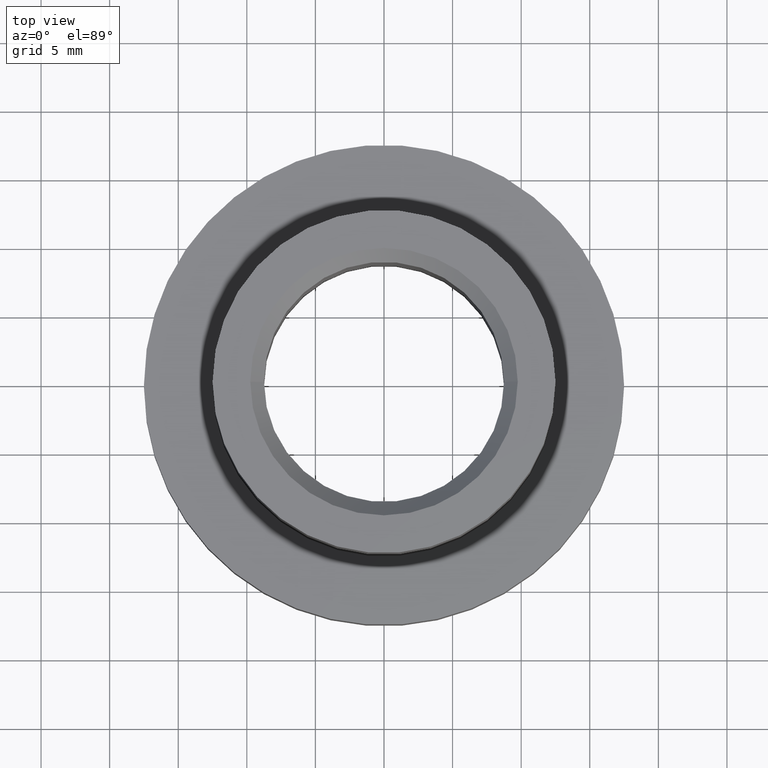
[diagram: clean part render]
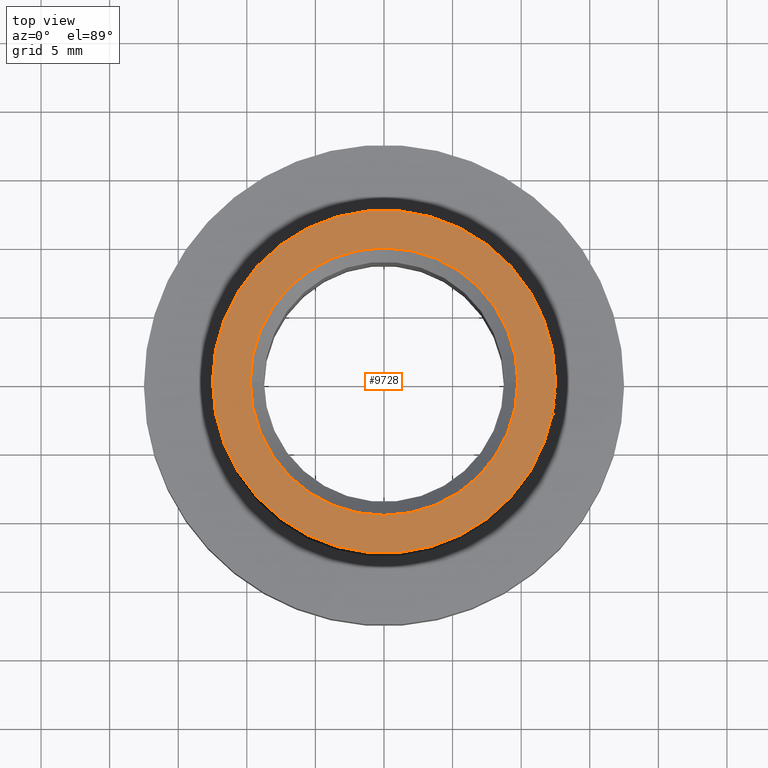
[diagram: same view with one face highlighted and labeled with its STEP entity id]
A machine part, top view. The second image highlights one B-rep face of the part: STEP entity #9728.
In plain terms, the highlighted planar face has unit normal (0, 0, -1).
Its self-contained STEP definition (entity closure, byte-faithful):
#746 = VERTEX_POINT ( 'NONE', #12157 ) ;
#756 = DIRECTION ( 'NONE',  ( 0.000000000000000000, 0.000000000000000000, -1.000000000000000000 ) ) ;
#775 = EDGE_CURVE ( 'NONE', #5687, #746, #13128, .T. ) ;
#846 = DIRECTION ( 'NONE',  ( -0.000000000000000000, -0.000000000000000000, 1.000000000000000000 ) ) ;
#925 = AXIS2_PLACEMENT_3D ( 'NONE', #8452, #1916, #5134 ) ;
#1014 = CIRCLE ( 'NONE', #925, 9.750000000000008882 ) ;
#1916 = DIRECTION ( 'NONE',  ( 0.000000000000000000, 0.000000000000000000, -1.000000000000000000 ) ) ;
#1945 = CARTESIAN_POINT ( 'NONE',  ( -12.50000000000000000, 1.530808498934191521E-15, 10.00000000000000000 ) ) ;
#2041 = DIRECTION ( 'NONE',  ( 1.000000000000000000, 0.000000000000000000, 0.000000000000000000 ) ) ;
#2430 = DIRECTION ( 'NONE',  ( 1.000000000000000000, 0.000000000000000000, 0.000000000000000000 ) ) ;
#2497 = DIRECTION ( 'NONE',  ( -1.000000000000000000, 0.000000000000000000, -0.000000000000000000 ) ) ;
#2968 = FACE_OUTER_BOUND ( 'NONE', #4777, .T. ) ;
#3476 = CIRCLE ( 'NONE', #8371, 12.50000000000000000 ) ;
#3492 = CARTESIAN_POINT ( 'NONE',  ( 0.000000000000000000, 0.000000000000000000, 10.00000000000000000 ) ) ;
#3863 = EDGE_CURVE ( 'NONE', #5375, #6345, #1014, .T. ) ;
#4083 = AXIS2_PLACEMENT_3D ( 'NONE', #12272, #5847, #2497 ) ;
#4173 = CARTESIAN_POINT ( 'NONE',  ( -9.750000000000008882, 1.194030629168670456E-15, 10.00000000000000000 ) ) ;
#4602 = ORIENTED_EDGE ( 'NONE', *, *, #775, .T. ) ;
#4777 = EDGE_LOOP ( 'NONE', ( #13000, #4602 ) ) ;
#5134 = DIRECTION ( 'NONE',  ( -1.000000000000000000, 0.000000000000000000, 0.000000000000000000 ) ) ;
#5375 = VERTEX_POINT ( 'NONE', #6726 ) ;
#5678 = ORIENTED_EDGE ( 'NONE', *, *, #8803, .T. ) ;
#5687 = VERTEX_POINT ( 'NONE', #1945 ) ;
#5847 = DIRECTION ( 'NONE',  ( 0.000000000000000000, 0.000000000000000000, -1.000000000000000000 ) ) ;
#6216 = AXIS2_PLACEMENT_3D ( 'NONE', #3492, #8964, #2430 ) ;
#6345 = VERTEX_POINT ( 'NONE', #4173 ) ;
#6726 = CARTESIAN_POINT ( 'NONE',  ( 9.750000000000008882, 0.000000000000000000, 10.00000000000000000 ) ) ;
#8371 = AXIS2_PLACEMENT_3D ( 'NONE', #12897, #846, #2041 ) ;
#8452 = CARTESIAN_POINT ( 'NONE',  ( 0.000000000000000000, 0.000000000000000000, 10.00000000000000000 ) ) ;
#8803 = EDGE_CURVE ( 'NONE', #6345, #5375, #8952, .T. ) ;
#8952 = CIRCLE ( 'NONE', #9447, 9.750000000000008882 ) ;
#8964 = DIRECTION ( 'NONE',  ( -0.000000000000000000, -0.000000000000000000, 1.000000000000000000 ) ) ;
#8984 = PLANE ( 'NONE',  #4083 ) ;
#9003 = ORIENTED_EDGE ( 'NONE', *, *, #3863, .T. ) ;
#9447 = AXIS2_PLACEMENT_3D ( 'NONE', #10473, #756, #11503 ) ;
#9728 = ADVANCED_FACE ( 'NONE', ( #12022, #2968 ), #8984, .F. ) ;
#10473 = CARTESIAN_POINT ( 'NONE',  ( 0.000000000000000000, 0.000000000000000000, 10.00000000000000000 ) ) ;
#10840 = EDGE_CURVE ( 'NONE', #746, #5687, #3476, .T. ) ;
#11503 = DIRECTION ( 'NONE',  ( -1.000000000000000000, 0.000000000000000000, 0.000000000000000000 ) ) ;
#12022 = FACE_BOUND ( 'NONE', #12253, .T. ) ;
#12157 = CARTESIAN_POINT ( 'NONE',  ( 12.50000000000000000, 0.000000000000000000, 10.00000000000000000 ) ) ;
#12253 = EDGE_LOOP ( 'NONE', ( #9003, #5678 ) ) ;
#12272 = CARTESIAN_POINT ( 'NONE',  ( 0.000000000000000000, 4.999999999999999112, 10.00000000000000000 ) ) ;
#12897 = CARTESIAN_POINT ( 'NONE',  ( 0.000000000000000000, 0.000000000000000000, 10.00000000000000000 ) ) ;
#13000 = ORIENTED_EDGE ( 'NONE', *, *, #10840, .T. ) ;
#13128 = CIRCLE ( 'NONE', #6216, 12.50000000000000000 ) ;